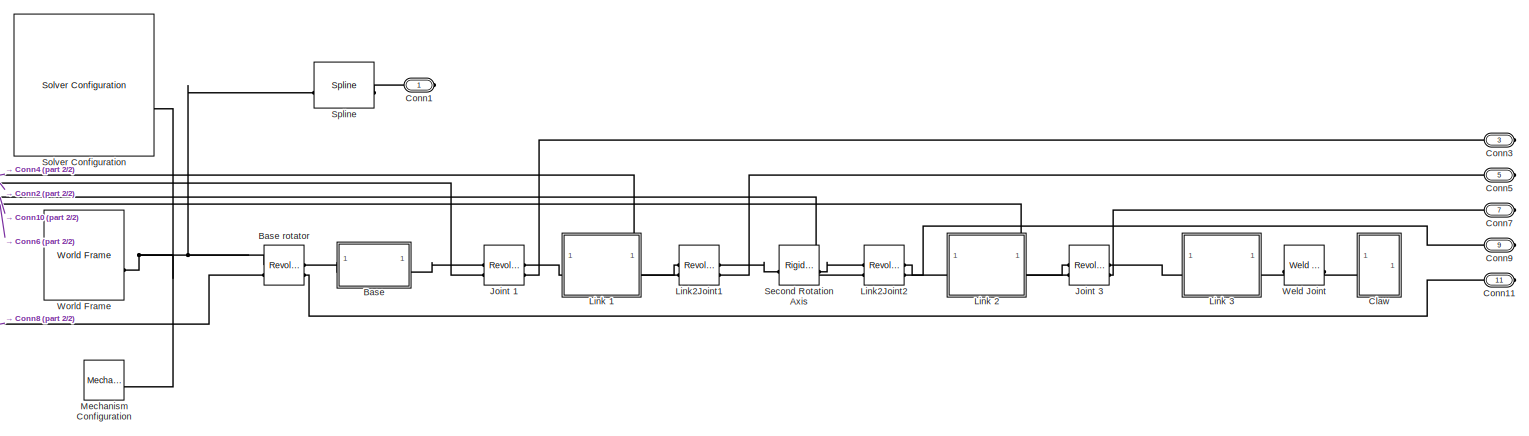
[diagram: root canvas - part 1/2, most of the canvas]
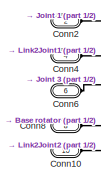
[diagram: root canvas - part 2/2, middle left region]
MODEL slx_30f78c17a7d2
KIND model
CONFIG AbsTol = auto
CONFIG EnableMultiTasking = off
CONFIG FixedStep = auto
CONFIG MaxStep = auto
CONFIG MinStep = auto
CONFIG RelTol = 1e-3
CONFIG SampleTimeConstraint = Unconstrained
CONFIG SolverName = VariableStepAuto
CONFIG StartTime = 0.0
CONFIG StopTime = 10.0
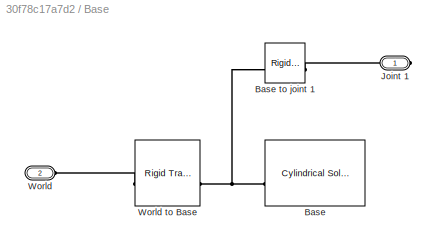
BLOCK [SubSystem] Base
BLOCK [Reference] Base rotator  REF=sm_lib/Joints/Revolute Joint
  SourceBlock = sm_lib/Joints/Revolute Joint
  SourceType = Revolute Joint
BLOCK [Reference] Base/Base  REF=sm_lib/Body Elements/Cylindrical Solid
  SourceBlock = sm_lib/Body Elements/Cylindrical Solid
  SourceType = Cylindrical Solid
BLOCK [Reference] Base/Base to joint 1  REF=sm_lib/Frames and
Transforms/Rigid
Transform
  SourceBlock = sm_lib/Frames and\nTransforms/Rigid\nTransform
  SourceType = Rigid\nTransform
BLOCK [PMIOPort] Base/Joint 1
  Side = Right
BLOCK [PMIOPort] Base/World
  Port = 2
  Side = Left
BLOCK [Reference] Base/World to Base  REF=sm_lib/Frames and
Transforms/Rigid
Transform
  SourceBlock = sm_lib/Frames and\nTransforms/Rigid\nTransform
  SourceType = Rigid\nTransform
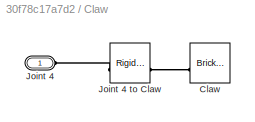
BLOCK [SubSystem] Claw
BLOCK [Reference] Claw/Claw  REF=sm_lib/Body Elements/Brick Solid
  SourceBlock = sm_lib/Body Elements/Brick Solid
  SourceType = Brick Solid
BLOCK [PMIOPort] Claw/Joint 4
  Side = Left
BLOCK [Reference] Claw/Joint 4 to Claw  REF=sm_lib/Frames and
Transforms/Rigid
Transform
  SourceBlock = sm_lib/Frames and\nTransforms/Rigid\nTransform
  SourceType = Rigid\nTransform
BLOCK [PMIOPort] Conn1
  Side = Right
BLOCK [PMIOPort] Conn10
  Port = 10
  Side = Left
BLOCK [PMIOPort] Conn11
  Port = 11
  Side = Right
BLOCK [PMIOPort] Conn2
  Port = 2
  Side = Left
BLOCK [PMIOPort] Conn3
  Port = 3
  Side = Right
BLOCK [PMIOPort] Conn4
  Port = 4
  Side = Left
BLOCK [PMIOPort] Conn5
  Port = 5
  Side = Right
BLOCK [PMIOPort] Conn6
  Port = 6
  Side = Left
BLOCK [PMIOPort] Conn7
  Port = 7
  Side = Right
BLOCK [PMIOPort] Conn8
  Port = 8
  Side = Left
BLOCK [PMIOPort] Conn9
  Port = 9
  Side = Right
BLOCK [Reference] Joint 1  REF=sm_lib/Joints/Revolute Joint
  SourceBlock = sm_lib/Joints/Revolute Joint
  SourceType = Revolute Joint
BLOCK [Reference] Joint 3  REF=sm_lib/Joints/Revolute Joint
  SourceBlock = sm_lib/Joints/Revolute Joint
  SourceType = Revolute Joint
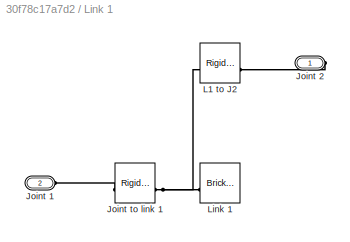
BLOCK [SubSystem] Link 1
BLOCK [PMIOPort] Link 1/Joint 1
  Port = 2
  Side = Left
BLOCK [PMIOPort] Link 1/Joint 2
  Side = Right
BLOCK [Reference] Link 1/Joint to link 1  REF=sm_lib/Frames and
Transforms/Rigid
Transform
  SourceBlock = sm_lib/Frames and\nTransforms/Rigid\nTransform
  SourceType = Rigid\nTransform
BLOCK [Reference] Link 1/L1 to J2  REF=sm_lib/Frames and
Transforms/Rigid
Transform
  SourceBlock = sm_lib/Frames and\nTransforms/Rigid\nTransform
  SourceType = Rigid\nTransform
BLOCK [Reference] Link 1/Link 1   REF=sm_lib/Body Elements/Brick Solid
  SourceBlock = sm_lib/Body Elements/Brick Solid
  SourceType = Brick Solid
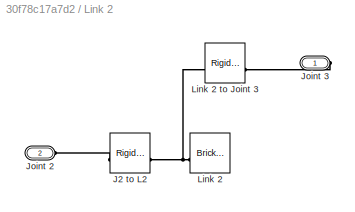
BLOCK [SubSystem] Link 2
BLOCK [Reference] Link 2/J2 to L2  REF=sm_lib/Frames and
Transforms/Rigid
Transform
  SourceBlock = sm_lib/Frames and\nTransforms/Rigid\nTransform
  SourceType = Rigid\nTransform
BLOCK [PMIOPort] Link 2/Joint 2
  Port = 2
  Side = Left
BLOCK [PMIOPort] Link 2/Joint 3
  Side = Right
BLOCK [Reference] Link 2/Link 2  REF=sm_lib/Body Elements/Brick Solid
  SourceBlock = sm_lib/Body Elements/Brick Solid
  SourceType = Brick Solid
BLOCK [Reference] Link 2/Link 2 to Joint 3  REF=sm_lib/Frames and
Transforms/Rigid
Transform
  SourceBlock = sm_lib/Frames and\nTransforms/Rigid\nTransform
  SourceType = Rigid\nTransform
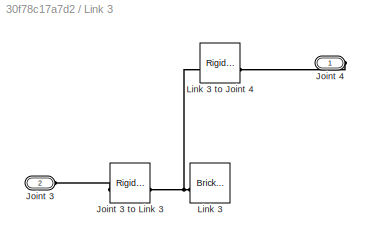
BLOCK [SubSystem] Link 3
BLOCK [PMIOPort] Link 3/Joint 3
  Port = 2
  Side = Left
BLOCK [Reference] Link 3/Joint 3 to Link 3  REF=sm_lib/Frames and
Transforms/Rigid
Transform
  SourceBlock = sm_lib/Frames and\nTransforms/Rigid\nTransform
  SourceType = Rigid\nTransform
BLOCK [PMIOPort] Link 3/Joint 4
  Side = Right
BLOCK [Reference] Link 3/Link 3  REF=sm_lib/Body Elements/Brick Solid
  SourceBlock = sm_lib/Body Elements/Brick Solid
  SourceType = Brick Solid
BLOCK [Reference] Link 3/Link 3 to Joint 4  REF=sm_lib/Frames and
Transforms/Rigid
Transform
  SourceBlock = sm_lib/Frames and\nTransforms/Rigid\nTransform
  SourceType = Rigid\nTransform
BLOCK [Reference] Link2Joint1  REF=sm_lib/Joints/Revolute Joint
  SourceBlock = sm_lib/Joints/Revolute Joint
  SourceType = Revolute Joint
BLOCK [Reference] Link2Joint2  REF=sm_lib/Joints/Revolute Joint
  SourceBlock = sm_lib/Joints/Revolute Joint
  SourceType = Revolute Joint
BLOCK [Reference] Mechanism Configuration  REF=sm_lib/Utilities/Mechanism
Configuration
  SourceBlock = sm_lib/Utilities/Mechanism\nConfiguration
  SourceType = Mechanism\nConfiguration
BLOCK [Reference] Second Rotation Axis  REF=sm_lib/Frames and
Transforms/Rigid
Transform
  SourceBlock = sm_lib/Frames and\nTransforms/Rigid\nTransform
  SourceType = Rigid\nTransform
BLOCK [Reference] Solver Configuration  REF=nesl_utility/Solver
Configuration
  SourceBlock = nesl_utility/Solver\nConfiguration
  SourceType = Solver\nConfiguration
BLOCK [Reference] Spline  REF=sm_lib/Curves and Surfaces/Spline
  SourceBlock = sm_lib/Curves and Surfaces/Spline
  SourceType = Spline
BLOCK [Reference] Weld Joint  REF=sm_lib/Joints/Weld Joint
  SourceBlock = sm_lib/Joints/Weld Joint
  SourceType = Weld Joint
BLOCK [Reference] World Frame  REF=sm_lib/Frames and
Transforms/World Frame
  SourceBlock = sm_lib/Frames and\nTransforms/World Frame
  SourceType = World Frame
PNET net1: Base rotator:LConn1 -- Mechanism Configuration:RConn1 -- Solver Configuration:RConn1 -- Spline:LConn1 -- World Frame:RConn1
PLINE Base rotator:LConn2 -- Conn8:RConn1
PLINE Base rotator:RConn1 -- Base:LConn1
PLINE Base rotator:RConn2 -- Conn11:RConn1
PNET net2: Base/Base to joint 1:LConn1 -- Base/Base:RConn1 -- Base/World to Base:RConn1
PLINE Base/Base to joint 1:RConn1 -- Base/Joint 1:RConn1
PLINE Base/World to Base:LConn1 -- Base/World:RConn1
PLINE Base:RConn1 -- Joint 1:LConn1
PLINE Claw/Claw:RConn1 -- Claw/Joint 4 to Claw:RConn1
PLINE Claw/Joint 4 to Claw:LConn1 -- Claw/Joint 4:RConn1
PLINE Claw:LConn1 -- Weld Joint:RConn1
PLINE Conn10:RConn1 -- Link2Joint2:LConn2
PLINE Conn1:RConn1 -- Spline:RConn1
PLINE Conn2:RConn1 -- Joint 1:LConn2
PLINE Conn3:RConn1 -- Joint 1:RConn2
PLINE Conn4:RConn1 -- Link2Joint1:LConn2
PLINE Conn5:RConn1 -- Link2Joint1:RConn2
PLINE Conn6:RConn1 -- Joint 3:LConn2
PLINE Conn7:RConn1 -- Joint 3:RConn2
PLINE Conn9:RConn1 -- Link2Joint2:RConn2
PLINE Joint 1:RConn1 -- Link 1:LConn1
PLINE Joint 3:LConn1 -- Link 2:RConn1
PLINE Joint 3:RConn1 -- Link 3:LConn1
PLINE Link 1/Joint 1:RConn1 -- Link 1/Joint to link 1:LConn1
PLINE Link 1/Joint 2:RConn1 -- Link 1/L1 to J2:RConn1
PNET net3: Link 1/Joint to link 1:RConn1 -- Link 1/L1 to J2:LConn1 -- Link 1/Link 1 :RConn1
PLINE Link 1:RConn1 -- Link2Joint1:LConn1
PLINE Link 2/J2 to L2:LConn1 -- Link 2/Joint 2:RConn1
PNET net4: Link 2/J2 to L2:RConn1 -- Link 2/Link 2 to Joint 3:LConn1 -- Link 2/Link 2:RConn1
PLINE Link 2/Joint 3:RConn1 -- Link 2/Link 2 to Joint 3:RConn1
PLINE Link 2:LConn1 -- Link2Joint2:RConn1
PLINE Link 3/Joint 3 to Link 3:LConn1 -- Link 3/Joint 3:RConn1
PNET net5: Link 3/Joint 3 to Link 3:RConn1 -- Link 3/Link 3 to Joint 4:LConn1 -- Link 3/Link 3:RConn1
PLINE Link 3/Joint 4:RConn1 -- Link 3/Link 3 to Joint 4:RConn1
PLINE Link 3:RConn1 -- Weld Joint:LConn1
PLINE Link2Joint1:RConn1 -- Second Rotation Axis:LConn1
PLINE Link2Joint2:LConn1 -- Second Rotation Axis:RConn1
note: PNET lines group multi-terminal physical nets as a canonical sorted terminal list (undirected conserving connections); 2-terminal nets keep the pairwise PLINE form
